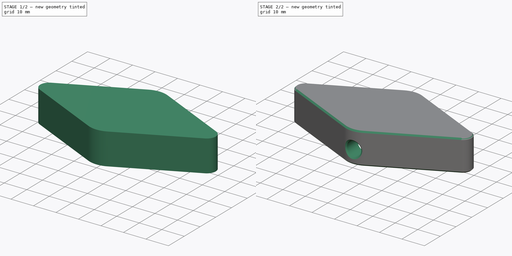
[diagram: build sequence overview — one tinted view per stage of 2, left to right]
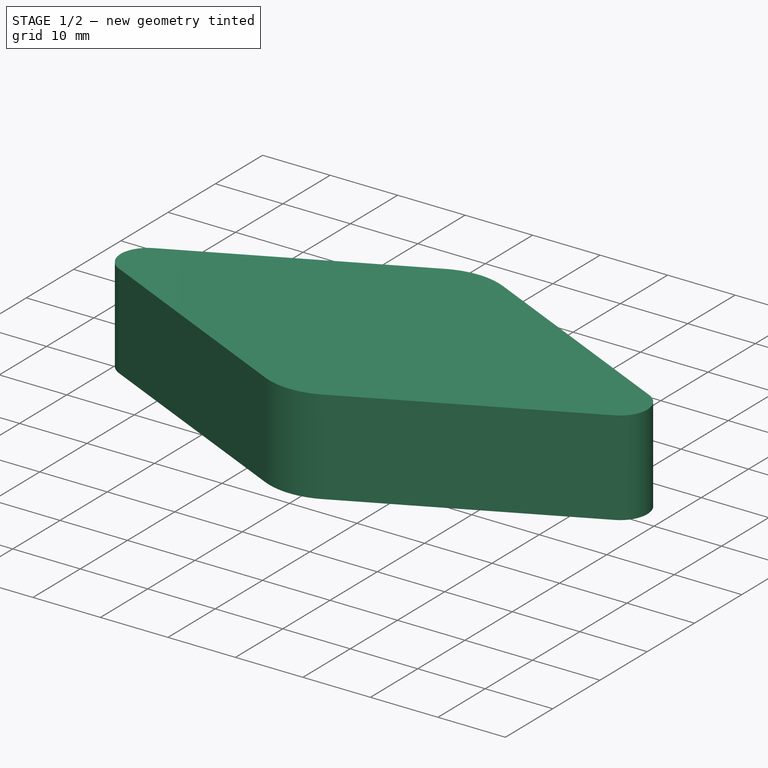
[diagram: stage 1 of 2 — iso view after this stage's code; geometry added in this stage tinted green]
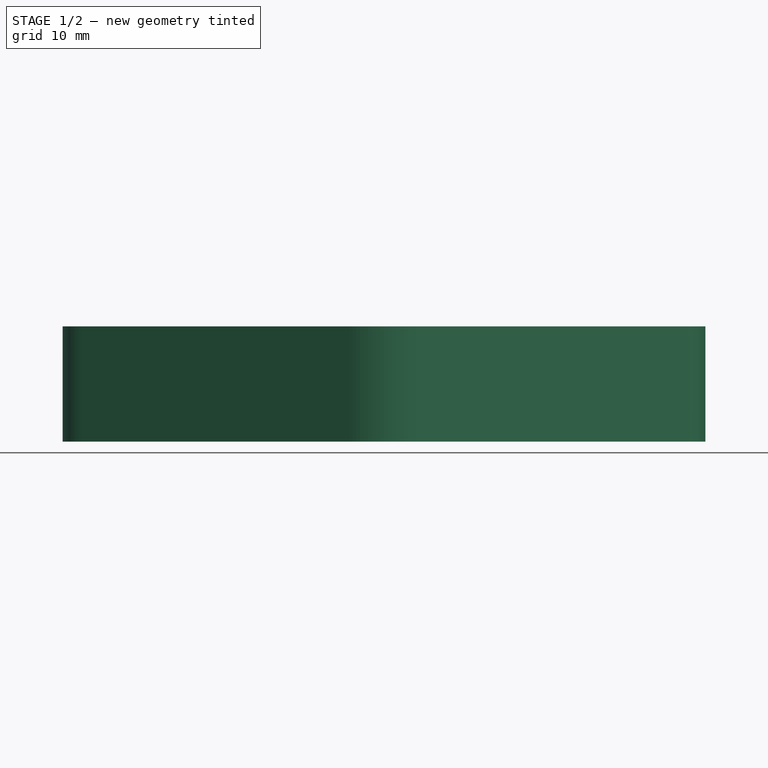
[diagram: stage 1 of 2 — front view after this stage's code; geometry added in this stage tinted green]
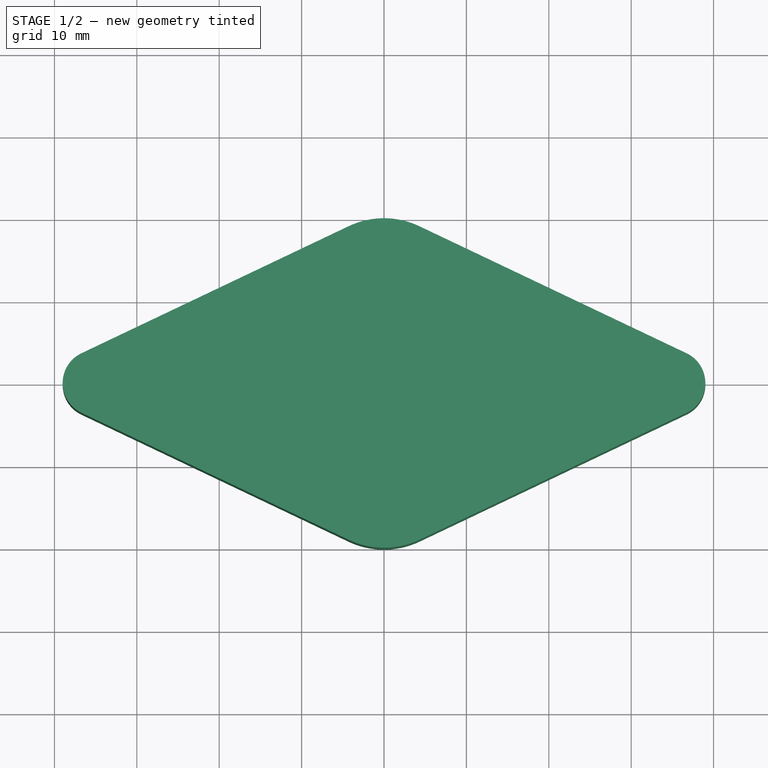
[diagram: stage 1 of 2 — top view after this stage's code; geometry added in this stage tinted green]
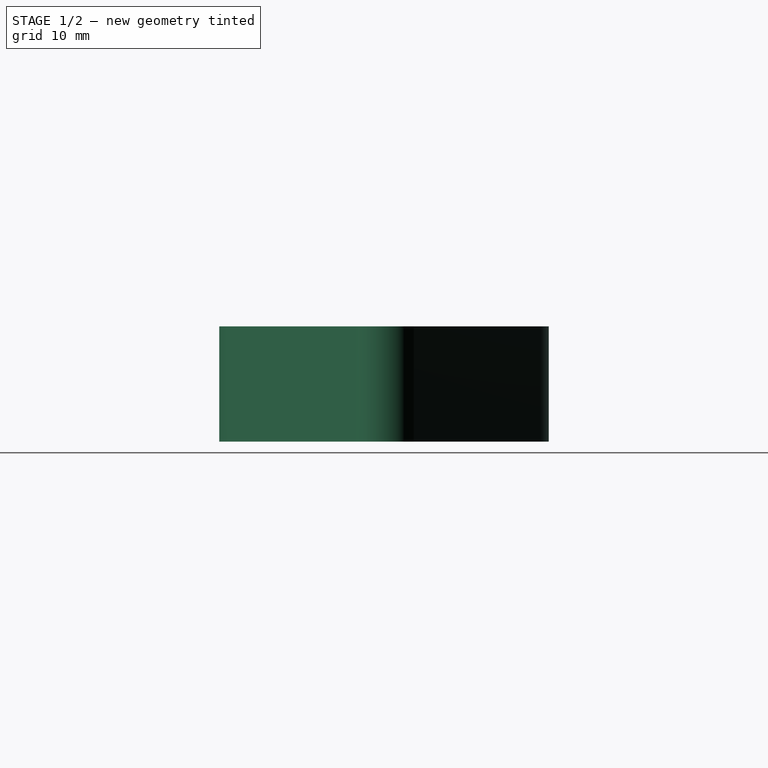
[diagram: stage 1 of 2 — right view after this stage's code; geometry added in this stage tinted green]
FCSTD DOCUMENT  (FreeCAD 0.22R36677 (Git))
Label: knob
License: All rights reserved
LicenseURL: http://en.wikipedia.org/wiki/All_rights_reserved
objects: Sketcher::SketchObject×3, PartDesign::Pocket×2, PartDesign::Pad×1, PartDesign::Chamfer×1, PartDesign::Body×1
note: 12 computed .brp shape members not serialized (recipe doc carries the construction recipe); baked Part::Feature solids carry a one-line shape summary decoded from their .brp

FEATURE [Sketcher::SketchObject] Sketch
  AttachmentSupport = -> [XY_Plane]
  FullyConstrained = true
  MapMode = 5
  sketch-geometry (9):
    g0: Circle CenterX=0 CenterY=0 CenterZ=0 NormalX=0 NormalY=0 NormalZ=1 AngleXU=0 Radius=12.7
    g1: LineSegment StartX=-36.7178 StartY=3.61236 StartZ=0 EndX=-4.29454 EndY=19.0309 EndZ=0
    g2: ArcOfCircle CenterX=0 CenterY=10 CenterZ=0 NormalX=0 NormalY=0 NormalZ=1 AngleXU=0 Radius=10 StartAngle=1.12691 EndAngle=2.01468
    g3: LineSegment StartX=4.29454 StartY=19.0309 StartZ=0 EndX=36.7178 EndY=3.61236 EndZ=0
    g4: ArcOfCircle CenterX=35 CenterY=0 CenterZ=0 NormalX=0 NormalY=0 NormalZ=1 AngleXU=0 Radius=4 StartAngle=5.15628 EndAngle=7.41009
    g5: LineSegment StartX=36.7178 StartY=-3.61236 StartZ=0 EndX=4.29454 EndY=-19.0309 EndZ=0
    g6: ArcOfCircle CenterX=0 CenterY=-10 CenterZ=0 NormalX=0 NormalY=0 NormalZ=1 AngleXU=0 Radius=10 StartAngle=4.2685 EndAngle=5.15628
    g7: LineSegment StartX=-4.29454 StartY=-19.0309 StartZ=0 EndX=-36.7178 EndY=-3.61236 EndZ=0
    g8: ArcOfCircle CenterX=-35 CenterY=0 CenterZ=0 NormalX=0 NormalY=0 NormalZ=1 AngleXU=0 Radius=4 StartAngle=2.01468 EndAngle=4.2685
  constraints (20):
    c: Diameter(g0) = 25.4
    c: Tangent(g1,g2) = 1.5708
    c: Tangent(g2,g3) = 1.5708
    c: Tangent(g3,g4) = 1.5708
    c: Tangent(g4,g5) = 1.5708
    c: Tangent(g5,g6) = 1.5708
    c: Tangent(g6,g7) = 1.5708
    c: Tangent(g7,g8) = 1.5708
    c: Tangent(g8,g1) = 1.5708
    c: Coincident(g0,g-1)
    c: PointOnObject(g4,g-1)
    c: Symmetric(g8,g4,g-2)
    c: PointOnObject(g2,g-2)
    c: Symmetric(g6,g2,g-1)
    c: Equal(g6,g2)
    c: Equal(g4,g8)
    c: Radius(g8) = 4
    c: Radius(g2) = 10
    c: DistanceY(g6,g2) = 20
    c: DistanceX(g8,g4) = 70
FEATURE [PartDesign::Pad] Pad
  Direction = (0,0,1)
  Length = 14
  Length2 = 10
  Profile = -> Sketch
  ReferenceAxis = -> Sketch [N_Axis]
  Suppressed = false
  Type = 0
FEATURE [Sketcher::SketchObject] Sketch001
  AttachmentSupport = -> [XY_Plane]
  FullyConstrained = true
  MapMode = 5
  sketch-geometry (9):
    g0: Circle CenterX=0 CenterY=0 CenterZ=0 NormalX=0 NormalY=0 NormalZ=1 AngleXU=0 Radius=12.7
    g1: LineSegment StartX=-34.7131 StartY=3.61461 StartZ=0 EndX=-4.28269 EndY=18.0365 EndZ=0
    g2: ArcOfCircle CenterX=0 CenterY=9 CenterZ=0 NormalX=0 NormalY=0 NormalZ=1 AngleXU=0 Radius=10 StartAngle=1.12822 EndAngle=2.01337
    g3: LineSegment StartX=4.28269 StartY=18.0365 StartZ=0 EndX=34.7131 EndY=3.61461 EndZ=0
    g4: ArcOfCircle CenterX=33 CenterY=0 CenterZ=0 NormalX=0 NormalY=0 NormalZ=1 AngleXU=0 Radius=4 StartAngle=5.15496 EndAngle=7.41141
    g5: LineSegment StartX=34.7131 StartY=-3.61461 StartZ=0 EndX=4.28269 EndY=-18.0365 EndZ=0
    g6: ArcOfCircle CenterX=0 CenterY=-9 CenterZ=0 NormalX=0 NormalY=0 NormalZ=1 AngleXU=0 Radius=10 StartAngle=4.26981 EndAngle=5.15496
    g7: LineSegment StartX=-4.28269 StartY=-18.0365 StartZ=0 EndX=-34.7131 EndY=-3.61461 EndZ=0
    g8: ArcOfCircle CenterX=-33 CenterY=0 CenterZ=0 NormalX=0 NormalY=0 NormalZ=1 AngleXU=0 Radius=4 StartAngle=2.01337 EndAngle=4.26981
  constraints (20):
    c: Diameter(g0) = 25.4
    c: Tangent(g1,g2) = 1.5708
    c: Tangent(g2,g3) = 1.5708
    c: Tangent(g3,g4) = 1.5708
    c: Tangent(g4,g5) = 1.5708
    c: Tangent(g5,g6) = 1.5708
    c: Tangent(g6,g7) = 1.5708
    c: Tangent(g7,g8) = 1.5708
    c: Tangent(g8,g1) = 1.5708
    c: Coincident(g0,g-1)
    c: PointOnObject(g4,g-1)
    c: Symmetric(g8,g4,g-2)
    c: PointOnObject(g2,g-2)
    c: Symmetric(g6,g2,g-1)
    c: Equal(g6,g2)
    c: Equal(g4,g8)
    c: Radius(g8) = 4
    c: Radius(g2) = 10
    c: DistanceY(g6,g2) = 18
    c: DistanceX(g8,g4) = 66
FEATURE [PartDesign::Pocket] Pocket
  BaseFeature = -> Pad
  Direction = (0,0,-1)
  Length = 10
  Length2 = 5
  Profile = -> Sketch001
  ReferenceAxis = -> Sketch001 [N_Axis]
  Reversed = true
  Suppressed = false
  Type = 0
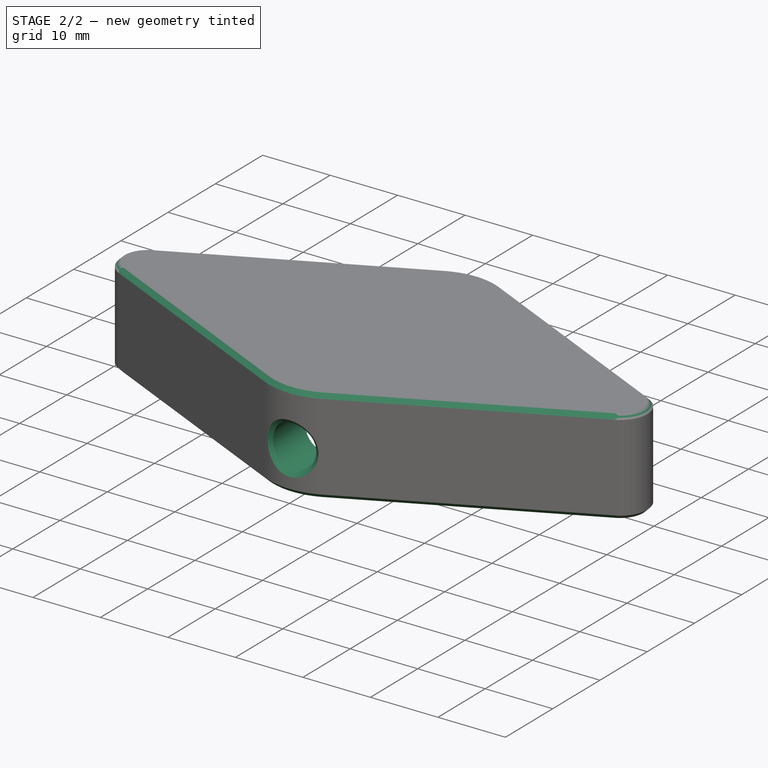
[diagram: stage 2 of 2 — iso view after this stage's code; geometry added in this stage tinted green]
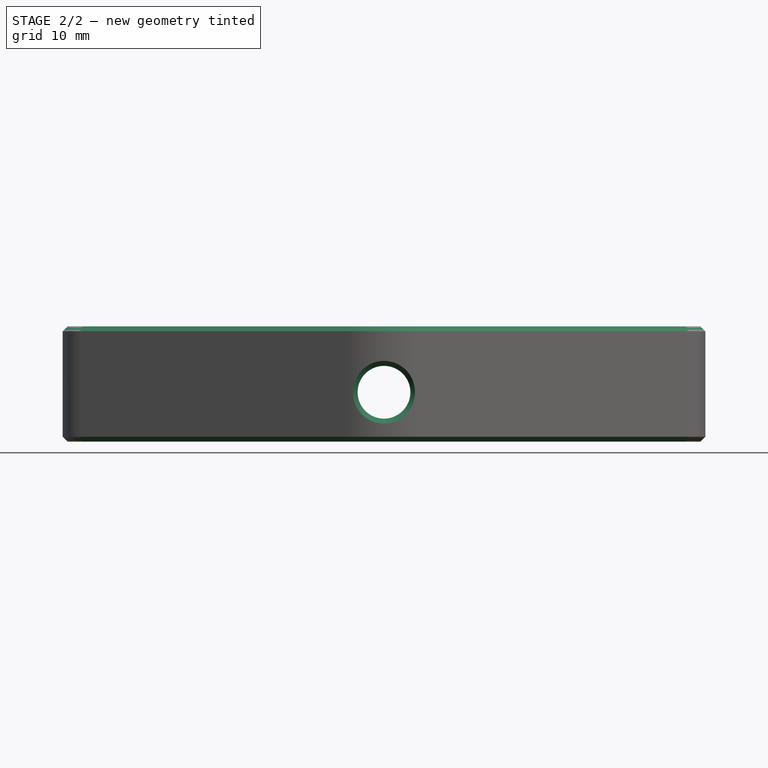
[diagram: stage 2 of 2 — front view after this stage's code; geometry added in this stage tinted green]
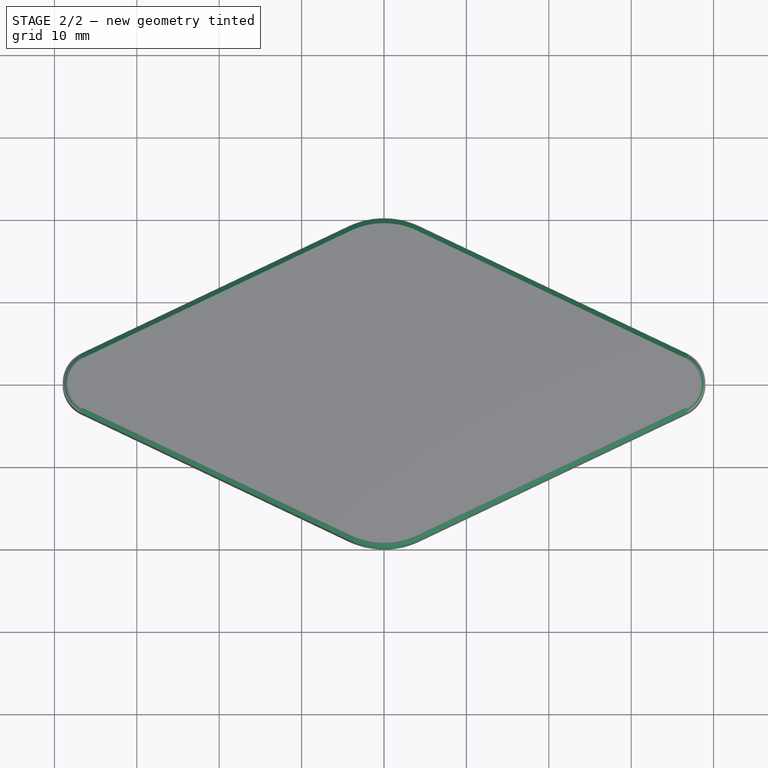
[diagram: stage 2 of 2 — top view after this stage's code; geometry added in this stage tinted green]
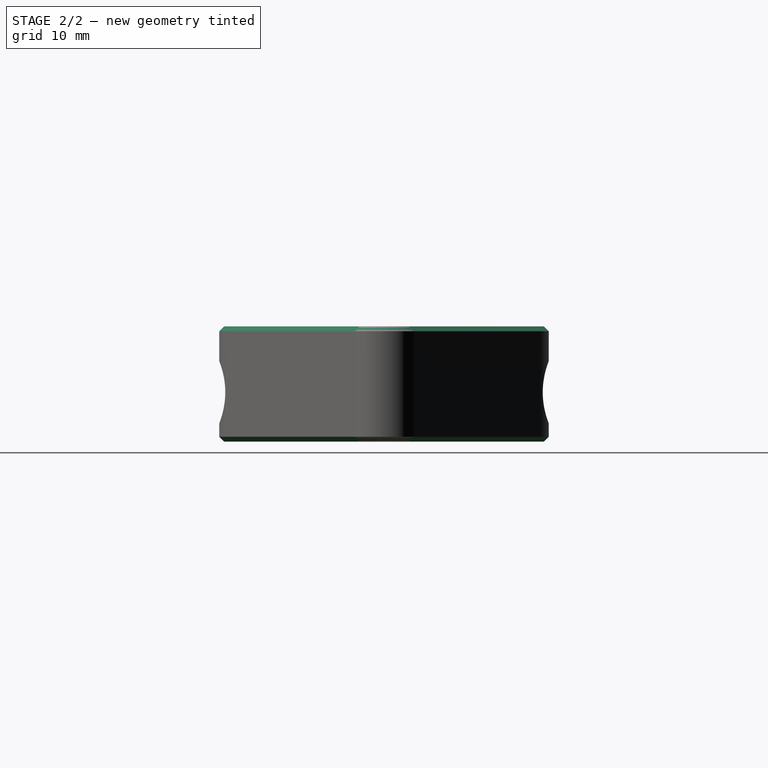
[diagram: stage 2 of 2 — right view after this stage's code; geometry added in this stage tinted green]
FEATURE [Sketcher::SketchObject] Sketch002
  AttachmentOffset = pos=(0,-1,0) rot=(0,0,1;0rad)
  AttachmentSupport = -> [XZ_Plane]
  FullyConstrained = true
  MapMode = 5
  Placement = pos=(0,-2e-16,-1) rot=(1,0,0;1.5708rad)
  sketch-geometry (1):
    g0: Circle CenterX=0 CenterY=7 CenterZ=0 NormalX=0 NormalY=0 NormalZ=1 AngleXU=0 Radius=3.2
  constraints (3):
    c: PointOnObject(g0,g-2)
    c: Diameter(g0) = 6.4
    c: DistanceY(g-1,g0) = 7
FEATURE [PartDesign::Pocket] Pocket001
  BaseFeature = -> Pocket
  Direction = (0,1,-2e-16)
  Length = 5
  Length2 = 5
  Midplane = true
  Profile = -> Sketch002
  ReferenceAxis = -> Sketch002 [N_Axis]
  Suppressed = false
  Type = 1
FEATURE [PartDesign::Chamfer] Chamfer
  Angle = 45
  Base = -> Pocket001 [Face4,Face5,Edge28,Edge11]
  BaseFeature = -> Pocket001
  ChamferType = 0
  FlipDirection = false
  Size = 0.6
  Size2 = 1
  SupportTransform = false
  Suppressed = false
  UseAllEdges = false
FEATURE [PartDesign::Body] Body
  Group = -> [Sketch,Pad,Sketch001,Pocket,Sketch002,Pocket001,Chamfer]
  Origin = -> Origin
  Tip = -> Chamfer
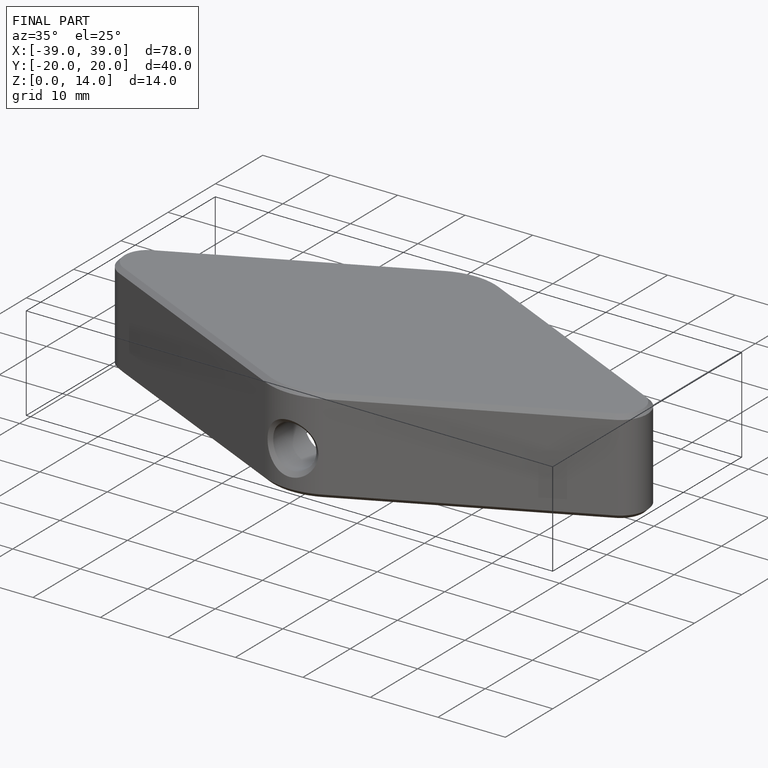
[diagram: finished part — iso view with bounding-box wireframe]
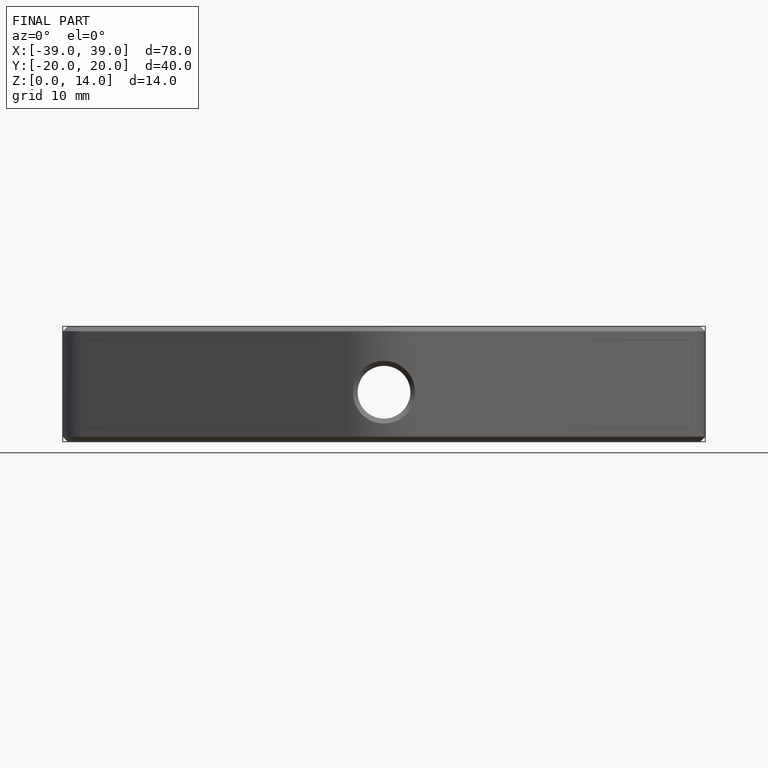
[diagram: finished part — front view with bounding-box wireframe]
